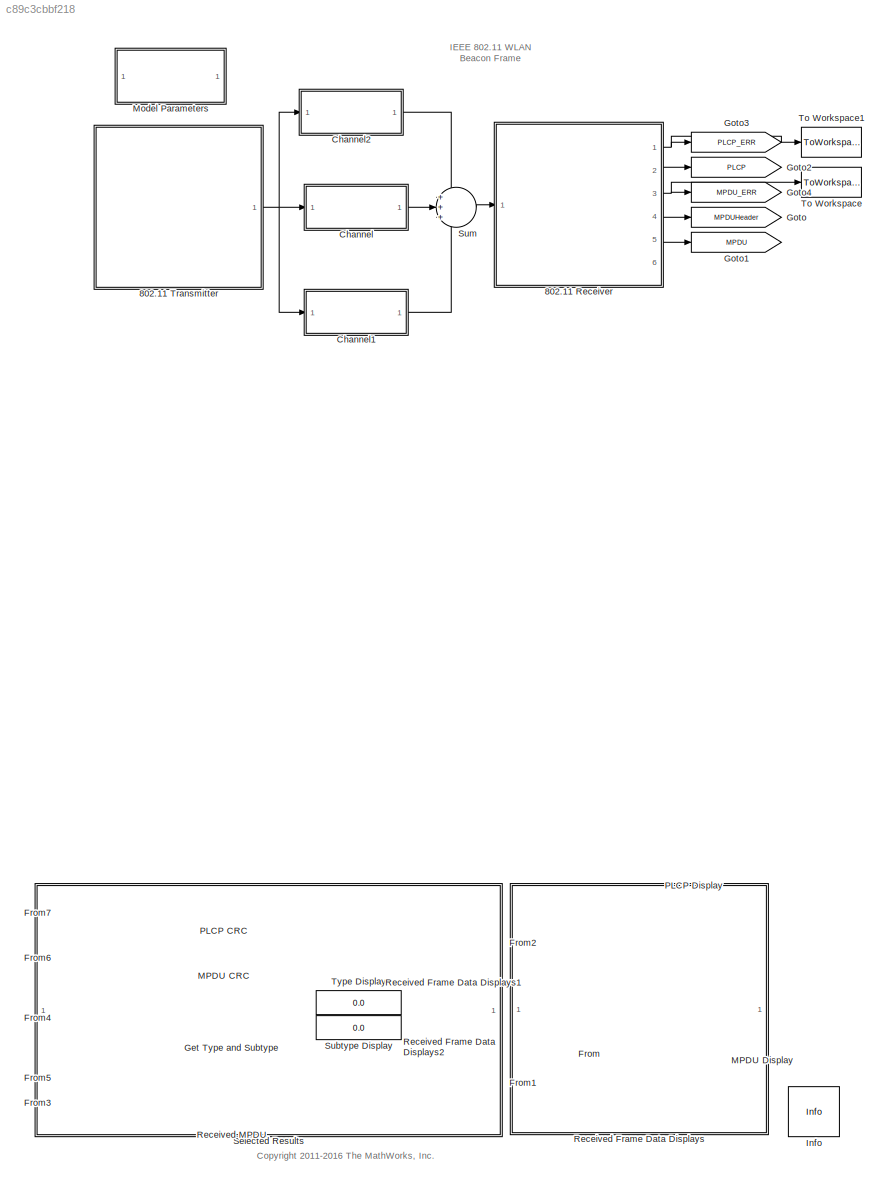
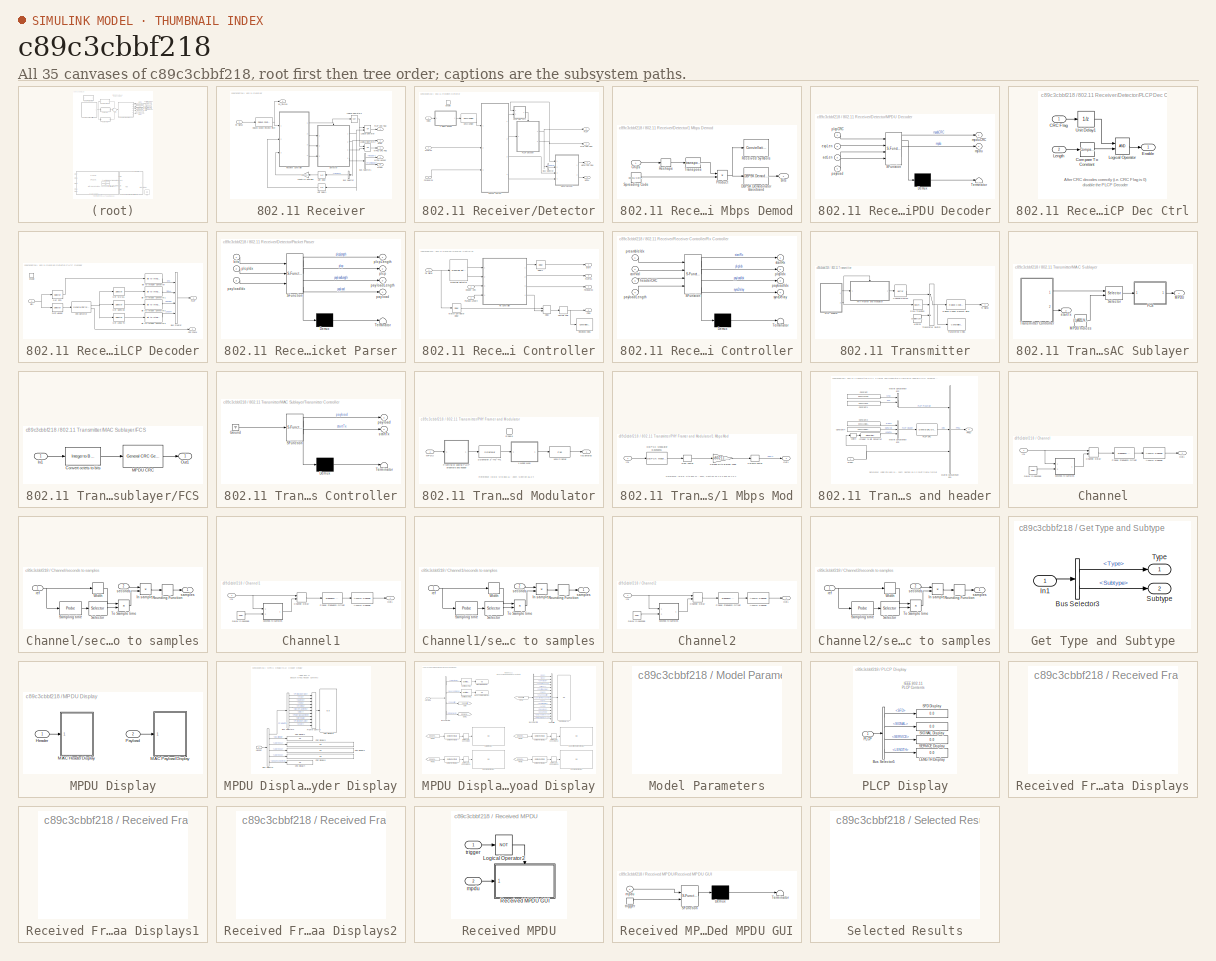
[diagram: thumbnail index - all 35 canvases of the model, root first then tree order]
MODEL slx_c89c3cbbf218
KIND model
CONFIG AbsTol = auto
CONFIG EnableMultiTasking = off
CONFIG FixedStep = auto
CONFIG InitFcn = load('commwlan80211BusTypes')
CONFIG MaxStep = auto
CONFIG MinStep = auto
CONFIG PostLoadFcn = commwlan80211BeaconModelParams('init')
CONFIG PreLoadFcn = load('commwlan80211BusTypes')\n
CONFIG RelTol = 1e-3
CONFIG SampleTimeConstraint = Unconstrained
CONFIG Solver = FixedStepDiscrete
CONFIG SolverName = FixedStepDiscrete
CONFIG StartTime = 0.0
CONFIG StopTime = 1
WORKSPACE source: external: MAT-File  (data not in archive)
BLOCK [SubSystem] 802.11 Receiver
  Ports = [1, 6]
  RequestExecContextInheritance = off
  Variant = off
BLOCK [BusSelector] 802.11 Receiver/Bus Selector
  OutputAsBus = off
  OutputSignals = LENGTH
  Ports = [1, 1]
BLOCK [BusSelector] 802.11 Receiver/Bus Selector1
  OutputAsBus = off
  OutputSignals = Header,FrameBody
  Ports = [1, 2]
BLOCK [SubSystem] 802.11 Receiver/Detector
  Ports = [3, 4, 1]
  RequestExecContextInheritance = off
  Variant = off
BLOCK [SubSystem] 802.11 Receiver/Detector/1 Mbps Demod
  Ports = [1, 1]
  RequestExecContextInheritance = off
  Variant = off
BLOCK [Outport] 802.11 Receiver/Detector/1 Mbps Demod/Bits
  IconDisplay = Port number
BLOCK [Inport] 802.11 Receiver/Detector/1 Mbps Demod/Chips
  IconDisplay = Port number
BLOCK [Reference] 802.11 Receiver/Detector/1 Mbps Demod/DBPSK Demodulator Baseband  REF=commdigbbndpm3/DBPSK
Demodulator
Baseband
  Ports = [1, 1]
  SourceBlock = commdigbbndpm3/DBPSK\nDemodulator\nBaseband
  SourceProductBaseCode = CM
  SourceProductName = Communications System Toolbox
  SourceType = DBPSK Demodulator Baseband
BLOCK [Product] 802.11 Receiver/Detector/1 Mbps Demod/Product
  InputSameDT = off
  Multiplication = Matrix(*)
  OutDataTypeStr = Inherit: Inherit via internal rule
  Ports = [2, 1]
  SaturateOnIntegerOverflow = off
BLOCK [ConstellationDiagram] 802.11 Receiver/Detector/1 Mbps Demod/Received Symbols
  Ports = [1]
  ScopeSpecificationString = comm.scopes.ConstellationDiagramBlockCfg('CurrentConfiguration', extmgr.ConfigurationSet(extmgr.Configuration('Core','General UI',true),extmgr.Configuration('Core','Source UI',true),extmgr.Configuration('Sources','WiredSimulink',true),extmgr.Configuration('Sources','SimulinkEvent',false),extmgr.Configuration('Sources','Simulink',false),extmgr.Configuration('Sources','SPTool',false),extmgr.Configur...<+2090ch>
  Tag = ScatterPlot
BLOCK [Reshape] 802.11 Receiver/Detector/1 Mbps Demod/Reshape
  OutputDimensionality = Customize
  OutputDimensions = [length(p80211.SpreadingCode), p80211.SymbolsPerChannelFrame]
  Ports = [1, 1]
BLOCK [Constant] 802.11 Receiver/Detector/1 Mbps Demod/Spreading Code
  Value = p80211.SpreadingCode
  VectorParams1D = off
BLOCK [Math] 802.11 Receiver/Detector/1 Mbps Demod/Transpose
  Operator = transpose
  Ports = [1, 1]
BLOCK [BusSelector] 802.11 Receiver/Detector/Bus Selector
  OutputAsBus = off
  OutputSignals = LENGTH
  Ports = [1, 1]
BLOCK [Inport] 802.11 Receiver/Detector/Chips
  IconDisplay = Port number
BLOCK [Reference] 802.11 Receiver/Detector/Descrambler  REF=commsequence2/Descrambler
  Ports = [1, 1]
  SourceBlock = commsequence2/Descrambler
  SourceProductBaseCode = CM
  SourceProductName = Communications System Toolbox
  SourceType = Descrambler
BLOCK [EnablePort] 802.11 Receiver/Detector/Enable
  Ports = []
  PropagateVarSize = During execution
  StatesWhenEnabling = reset
BLOCK [Outport] 802.11 Receiver/Detector/MPDU
  IconDisplay = Port number
  Port = 4
BLOCK [Outport] 802.11 Receiver/Detector/MPDU CRC Flag
  IconDisplay = Port number
  InitialOutput = 1
  Port = 3
BLOCK [SubSystem] 802.11 Receiver/Detector/MPDU Decoder
  ErrorFcn = Stateflow.Translate.translate
  PermitHierarchicalResolution = ExplicitOnly
  Ports = [4, 2]
  RequestExecContextInheritance = off
  SFBlockType = MATLAB Function
  TreatAsAtomicUnit = on
  Variant = off
BLOCK [Demux] 802.11 Receiver/Detector/MPDU Decoder/ Demux 
  Outputs = 1
  Ports = [1, 1]
BLOCK [S-Function] 802.11 Receiver/Detector/MPDU Decoder/ SFunction 
  EnableBusSupport = on
  FunctionName = sf_sfun
  PortCounts = [4 3]
  Ports = [4, 3]
  SFcnIsStateOwnerBlock = off
  SFunctionDeploymentMode = off
  Tag = Stateflow S-Function project 2
BLOCK [Terminator] 802.11 Receiver/Detector/MPDU Decoder/ Terminator 
BLOCK [Inport] 802.11 Receiver/Detector/MPDU Decoder/actLen
  IconDisplay = Port number
  Port = 3
BLOCK [Inport] 802.11 Receiver/Detector/MPDU Decoder/expLen
  IconDisplay = Port number
  Port = 2
BLOCK [Outport] 802.11 Receiver/Detector/MPDU Decoder/mpdu
  IconDisplay = Port number
  Port = 2
BLOCK [Outport] 802.11 Receiver/Detector/MPDU Decoder/mpduCRC
  IconDisplay = Port number
BLOCK [Inport] 802.11 Receiver/Detector/MPDU Decoder/payload
  IconDisplay = Port number
  Port = 4
BLOCK [Inport] 802.11 Receiver/Detector/MPDU Decoder/plcpCRC
  IconDisplay = Port number
BLOCK [Outport] 802.11 Receiver/Detector/PLCP
  IconDisplay = Port number
  Port = 2
BLOCK [Outport] 802.11 Receiver/Detector/PLCP CRC Flag
  IconDisplay = Port number
  InitialOutput = 1
BLOCK [SubSystem] 802.11 Receiver/Detector/PLCP Dec Ctrl
  Ports = [2, 1]
  RequestExecContextInheritance = off
  Variant = off
BLOCK [Inport] 802.11 Receiver/Detector/PLCP Dec Ctrl/CRC Flag
  IconDisplay = Port number
BLOCK [Reference] 802.11 Receiver/Detector/PLCP Dec Ctrl/Compare To Constant  REF=simulink/Logic and Bit
Operations/Compare
To Constant
  Ports = [1, 1]
  SourceBlock = simulink/Logic and Bit\nOperations/Compare\nTo Constant
  SourceProductBaseCode = SL
  SourceProductName = Simulink
  SourceType = Compare To Constant
BLOCK [Outport] 802.11 Receiver/Detector/PLCP Dec Ctrl/Enable
  IconDisplay = Port number
BLOCK [Inport] 802.11 Receiver/Detector/PLCP Dec Ctrl/Length
  IconDisplay = Port number
  Port = 2
BLOCK [Logic] 802.11 Receiver/Detector/PLCP Dec Ctrl/Logical Operator
  AllPortsSameDT = off
  OutDataTypeStr = boolean
  Ports = [2, 1]
BLOCK [UnitDelay] 802.11 Receiver/Detector/PLCP Dec Ctrl/Unit Delay1
  InitialCondition = 1
  InputProcessing = Elements as channels (sample based)
  SampleTime = -1
BLOCK [SubSystem] 802.11 Receiver/Detector/PLCP Decoder
  Ports = [1, 2, 1]
  RequestExecContextInheritance = off
  Variant = off
BLOCK [Reference] 802.11 Receiver/Detector/PLCP Decoder/Bit to Integer Converter  REF=commutil2/Bit to Integer
Converter
  Ports = [1, 1]
  SourceBlock = commutil2/Bit to Integer\nConverter
  SourceProductBaseCode = CM
  SourceProductName = Communications System Toolbox
  SourceType = Bit to Integer Converter
BLOCK [Reference] 802.11 Receiver/Detector/PLCP Decoder/Bit to Integer Converter1  REF=commutil2/Bit to Integer
Converter
  Ports = [1, 1]
  SourceBlock = commutil2/Bit to Integer\nConverter
  SourceProductBaseCode = CM
  SourceProductName = Communications System Toolbox
  SourceType = Bit to Integer Converter
BLOCK [Reference] 802.11 Receiver/Detector/PLCP Decoder/Bit to Integer Converter2  REF=commutil2/Bit to Integer
Converter
  Ports = [1, 1]
  SourceBlock = commutil2/Bit to Integer\nConverter
  SourceProductBaseCode = CM
  SourceProductName = Communications System Toolbox
  SourceType = Bit to Integer Converter
BLOCK [Reference] 802.11 Receiver/Detector/PLCP Decoder/Bit to Integer Converter3  REF=commutil2/Bit to Integer
Converter
  Ports = [1, 1]
  SourceBlock = commutil2/Bit to Integer\nConverter
  SourceProductBaseCode = CM
  SourceProductName = Communications System Toolbox
  SourceType = Bit to Integer Converter
BLOCK [Inport] 802.11 Receiver/Detector/PLCP Decoder/Bits
  IconDisplay = Port number
BLOCK [BusCreator] 802.11 Receiver/Detector/PLCP Decoder/Bus Creator
  DisplayOption = bar
  InheritFromInputs = on
  Inputs = 4
  Ports = [4, 1]
BLOCK [Outport] 802.11 Receiver/Detector/PLCP Decoder/CRC Check
  IconDisplay = Port number
  Port = 2
BLOCK [Reference] 802.11 Receiver/Detector/PLCP Decoder/CRC Detector  REF=commcrc2/General CRC
Syndrome
Detector
  Ports = [1, 2]
  SourceBlock = commcrc2/General CRC\nSyndrome\nDetector
  SourceProductBaseCode = CM
  SourceProductName = Communications System Toolbox
  SourceType = General CRC Syndrome Detector
BLOCK [EnablePort] 802.11 Receiver/Detector/PLCP Decoder/Enable
  Ports = []
  PropagateVarSize = During execution
  StatesWhenEnabling = reset
BLOCK [Selector] 802.11 Receiver/Detector/PLCP Decoder/Get LENGTH
  IndexOptions = Index vector (dialog)
  Indices = 17:32
  InputPortWidth = 32
  OutputSizes = 1
  Ports = [1, 1]
BLOCK [Selector] 802.11 Receiver/Detector/PLCP Decoder/Get SERVICE
  IndexOptions = Index vector (dialog)
  Indices = 9:16
  InputPortWidth = 32
  OutputSizes = 1
  Ports = [1, 1]
BLOCK [Selector] 802.11 Receiver/Detector/PLCP Decoder/Get SFD
  IndexOptions = Index vector (dialog)
  Indices = (1:16)+length(p80211.ScramblerPolynomial)
  InputPortWidth = p80211.PLCPHeaderLength + length(p80211.SFD) + length(p80211.ScramblerPolynomial)
  OutputSizes = 1
  Ports = [1, 1]
BLOCK [Selector] 802.11 Receiver/Detector/PLCP Decoder/Get SIGNAL
  IndexOptions = Index vector (dialog)
  Indices = 1:8
  InputPortWidth = 32
  OutputSizes = 1
  Ports = [1, 1]
BLOCK [Outport] 802.11 Receiver/Detector/PLCP Decoder/PLCP
  IconDisplay = Port number
BLOCK [Selector] 802.11 Receiver/Detector/PLCP Decoder/PLCP Header
  IndexOptions = Index vector (dialog)
  Indices = (17:64)+length(p80211.ScramblerPolynomial)
  InputPortWidth = p80211.PLCPHeaderLength + length(p80211.SFD) + length(p80211.ScramblerPolynomial)
  OutputSizes = 1
  Ports = [1, 1]
BLOCK [Inport] 802.11 Receiver/Detector/PLCPIdx
  IconDisplay = Port number
  Port = 2
BLOCK [SubSystem] 802.11 Receiver/Detector/Packet Parser
  ErrorFcn = Stateflow.Translate.translate
  PermitHierarchicalResolution = ExplicitOnly
  Ports = [3, 4]
  RequestExecContextInheritance = off
  SFBlockType = MATLAB Function
  TreatAsAtomicUnit = on
  Variant = off
BLOCK [Demux] 802.11 Receiver/Detector/Packet Parser/ Demux 
  Outputs = 1
  Ports = [1, 1]
BLOCK [S-Function] 802.11 Receiver/Detector/Packet Parser/ SFunction 
  EnableBusSupport = on
  FunctionName = sf_sfun
  Parameters = p80211
  PortCounts = [3 5]
  Ports = [3, 5]
  SFcnIsStateOwnerBlock = off
  SFunctionDeploymentMode = off
  Tag = Stateflow S-Function project 3
BLOCK [Terminator] 802.11 Receiver/Detector/Packet Parser/ Terminator 
BLOCK [Inport] 802.11 Receiver/Detector/Packet Parser/bits
  IconDisplay = Port number
BLOCK [Outport] 802.11 Receiver/Detector/Packet Parser/payload
  IconDisplay = Port number
  Port = 4
BLOCK [Inport] 802.11 Receiver/Detector/Packet Parser/payloadIdx
  IconDisplay = Port number
  Port = 3
BLOCK [Outport] 802.11 Receiver/Detector/Packet Parser/payloadLength
  IconDisplay = Port number
  Port = 3
BLOCK [Outport] 802.11 Receiver/Detector/Packet Parser/plcp
  IconDisplay = Port number
  Port = 2
BLOCK [Inport] 802.11 Receiver/Detector/Packet Parser/plcpIdx
  IconDisplay = Port number
  Port = 2
BLOCK [Outport] 802.11 Receiver/Detector/Packet Parser/plcpLength
  IconDisplay = Port number
BLOCK [Inport] 802.11 Receiver/Detector/PayloadIdx
  IconDisplay = Port number
  Port = 3
BLOCK [Gain] 802.11 Receiver/Length in Samples
  Gain = p80211.SamplesPerChip*p80211.SpreadingRate
  OutDataTypeStr = uint32
BLOCK [Logic] 802.11 Receiver/Logical Operator
  AllPortsSameDT = off
  Operator = OR
  OutDataTypeStr = boolean
  Ports = [2, 1]
BLOCK [Logic] 802.11 Receiver/Logical Operator1
  AllPortsSameDT = off
  Operator = OR
  OutDataTypeStr = boolean
  Ports = [2, 1]
BLOCK [Logic] 802.11 Receiver/Logical Operator2
  AllPortsSameDT = off
  Operator = NOT
  OutDataTypeStr = boolean
  Ports = [1, 1]
BLOCK [Outport] 802.11 Receiver/MPDU
  IconDisplay = Port number
  Port = 5
BLOCK [Outport] 802.11 Receiver/MPDU CRC Flag
  IconDisplay = Port number
  Port = 3
BLOCK [Outport] 802.11 Receiver/MPDU Header
  IconDisplay = Port number
  Port = 4
BLOCK [Outport] 802.11 Receiver/PLCP
  IconDisplay = Port number
  Port = 2
BLOCK [Outport] 802.11 Receiver/PLCP CRC Flag
  IconDisplay = Port number
BLOCK [Outport] 802.11 Receiver/RX_filtered
  IconDisplay = Port number
  Port = 6
BLOCK [Reference] 802.11 Receiver/Raised Cosine Receive Filter  REF=commfilt2/Raised Cosine
Receive Filter
  Ports = [1, 1]
  SourceBlock = commfilt2/Raised Cosine\nReceive Filter
  SourceProductBaseCode = CM
  SourceProductName = Communications System Toolbox
  SourceType = Raised Cosine Receive Filter
  UserDataPersistent = on
BLOCK [SubSystem] 802.11 Receiver/Receiver Controller
  Ports = [3, 4]
  RequestExecContextInheritance = off
  Variant = off
BLOCK [Outport] 802.11 Receiver/Receiver Controller/Chips
  IconDisplay = Port number
  Port = 2
BLOCK [Delay] 802.11 Receiver/Receiver Controller/Delay
  DelayLengthSource = Input port
  DelayLengthUpperLimit = 11264
  InputPortMap = u0,p1
  InputProcessing = Columns as channels (frame based)
  Ports = [2, 1]
BLOCK [Delay] 802.11 Receiver/Receiver Controller/Delay1
  DelayLength = 1
  InitialCondition = 0
  InputPortMap = u0
  Ports = [1, 1]
  UseCircularBuffer = on
  UserDataPersistent = on
BLOCK [Inport] 802.11 Receiver/Receiver Controller/Header CRC
  IconDisplay = Port number
  Port = 2
BLOCK [Delay] 802.11 Receiver/Receiver Controller/Match Correlator Delay
  DelayLength = 1
  InitialCondition = 0
  InputPortMap = u0
  Ports = [1, 1]
  UseCircularBuffer = on
  UserDataPersistent = on
BLOCK [Outport] 802.11 Receiver/Receiver Controller/PLCPIdx
  IconDisplay = Port number
  Port = 3
BLOCK [Inport] 802.11 Receiver/Receiver Controller/Payload Length
  IconDisplay = Port number
  Port = 3
BLOCK [Outport] 802.11 Receiver/Receiver Controller/PayloadIdx
  IconDisplay = Port number
  Port = 4
BLOCK [Reference] 802.11 Receiver/Receiver Controller/Preamble Detector  REF=commsync2/Preamble Detector
  Ports = [1, 2]
  SourceBlock = commsync2/Preamble Detector
  SourceProductBaseCode = CM
  SourceProductName = Communications System Toolbox
  SourceType = Preamble Detector
BLOCK [ConstellationDiagram] 802.11 Receiver/Receiver Controller/Received Chips
  Ports = [1]
  ScopeSpecificationString = comm.scopes.ConstellationDiagramBlockCfg('CurrentConfiguration', extmgr.ConfigurationSet(extmgr.Configuration('Core','General UI',true),extmgr.Configuration('Core','Source UI',true),extmgr.Configuration('Sources','WiredSimulink',true),extmgr.Configuration('Visuals','Constellation',true,'MinYLim','-4','MaxYLim','4','MinXLim','-4','MaxXLim','4','SymbolsToDisplayFromInput',false,'SymbolsToDisplay','p...<+956ch>
  Tag = ScatterPlot
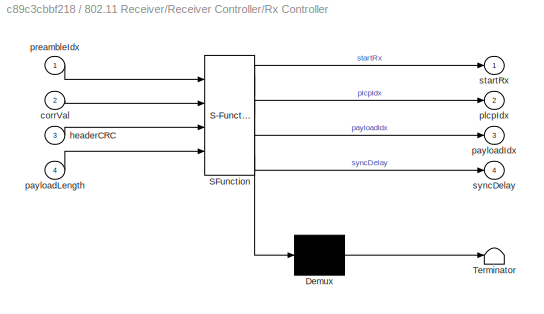
BLOCK [SubSystem] 802.11 Receiver/Receiver Controller/Rx Controller
  ErrorFcn = Stateflow.Translate.translate
  PermitHierarchicalResolution = ExplicitOnly
  Ports = [4, 4]
  RequestExecContextInheritance = off
  SFBlockType = MATLAB Function
  TreatAsAtomicUnit = on
  Variant = off
BLOCK [Demux] 802.11 Receiver/Receiver Controller/Rx Controller/ Demux 
  Outputs = 1
  Ports = [1, 1]
BLOCK [S-Function] 802.11 Receiver/Receiver Controller/Rx Controller/ SFunction 
  EnableBusSupport = on
  FunctionName = sf_sfun
  Parameters = p80211
  PortCounts = [4 5]
  Ports = [4, 5]
  SFcnIsStateOwnerBlock = off
  SFunctionDeploymentMode = off
  Tag = Stateflow S-Function project 4
BLOCK [Terminator] 802.11 Receiver/Receiver Controller/Rx Controller/ Terminator 
BLOCK [Inport] 802.11 Receiver/Receiver Controller/Rx Controller/corrVal
  IconDisplay = Port number
  Port = 2
BLOCK [Inport] 802.11 Receiver/Receiver Controller/Rx Controller/headerCRC
  IconDisplay = Port number
  Port = 3
BLOCK [Outport] 802.11 Receiver/Receiver Controller/Rx Controller/payloadIdx
  IconDisplay = Port number
  Port = 3
BLOCK [Inport] 802.11 Receiver/Receiver Controller/Rx Controller/payloadLength
  IconDisplay = Port number
  Port = 4
BLOCK [Outport] 802.11 Receiver/Receiver Controller/Rx Controller/plcpIdx
  IconDisplay = Port number
  Port = 2
BLOCK [Inport] 802.11 Receiver/Receiver Controller/Rx Controller/preambleIdx
  IconDisplay = Port number
BLOCK [Outport] 802.11 Receiver/Receiver Controller/Rx Controller/startRx
  IconDisplay = Port number
BLOCK [Outport] 802.11 Receiver/Receiver Controller/Rx Controller/syncDelay
  IconDisplay = Port number
  Port = 4
BLOCK [Inport] 802.11 Receiver/Receiver Controller/Rx Signal
  IconDisplay = Port number
BLOCK [DownSample] 802.11 Receiver/Receiver Controller/Sample Chip
  N = p80211.SamplesPerChip
  UserDataPersistent = on
BLOCK [Outport] 802.11 Receiver/Receiver Controller/Start
  IconDisplay = Port number
BLOCK [Inport] 802.11 Receiver/Rx Signal
  IconDisplay = Port number
BLOCK [UnitDelay] 802.11 Receiver/Unit Delay
  InitialCondition = p80211.SymbolsPerChannelFrame
  InputProcessing = Elements as channels (sample based)
  SampleTime = -1
BLOCK [UnitDelay] 802.11 Receiver/Unit Delay1
  InitialCondition = 1
  InputProcessing = Elements as channels (sample based)
  SampleTime = -1
BLOCK [SubSystem] 802.11 Transmitter
  Ports = [0, 1]
  RequestExecContextInheritance = off
  Variant = off
BLOCK [Constant] 802.11 Transmitter/All Zeros
  Value = complex(zeros(p80211.SymbolsPerChannelFrame*p80211.SpreadingRate,1))
  VectorParams1D = off
BLOCK [Buffer] 802.11 Transmitter/Channel Frames
  N = p80211.SymbolsPerChannelFrame*p80211.SpreadingRate
  OutputFrames = off
BLOCK [SubSystem] 802.11 Transmitter/MAC Sublayer
  Ports = [0, 2]
  RequestExecContextInheritance = off
  Variant = off
BLOCK [SubSystem] 802.11 Transmitter/MAC Sublayer/FCS
  Ports = [1, 1]
  RequestExecContextInheritance = off
  Variant = off
BLOCK [Reference] 802.11 Transmitter/MAC Sublayer/FCS/Convert octets to bits  REF=commutil2/Integer to Bit
Converter
  Ports = [1, 1]
  SourceBlock = commutil2/Integer to Bit\nConverter
  SourceProductBaseCode = CM
  SourceProductName = Communications System Toolbox
  SourceType = Integer to Bit Converter
BLOCK [Inport] 802.11 Transmitter/MAC Sublayer/FCS/In1
  IconDisplay = Port number
BLOCK [Reference] 802.11 Transmitter/MAC Sublayer/FCS/MPDU CRC  REF=commcrc2/General CRC
Generator
  Ports = [1, 1]
  SourceBlock = commcrc2/General CRC\nGenerator
  SourceProductBaseCode = CM
  SourceProductName = Communications System Toolbox
  SourceType = General CRC Generator
BLOCK [Outport] 802.11 Transmitter/MAC Sublayer/FCS/Out1
  IconDisplay = Port number
BLOCK [Outport] 802.11 Transmitter/MAC Sublayer/MPDU
  IconDisplay = Port number
BLOCK [Constant] 802.11 Transmitter/MAC Sublayer/MPDU Indices
  Value = (1:p80211.NumMPDUOctets)'
  VectorParams1D = off
BLOCK [Selector] 802.11 Transmitter/MAC Sublayer/Selector
  IndexOptions = Index vector (port)
  Indices = [1:p80211.NumMPDUOctets]
  OutputSizes = 1
  Ports = [2, 1]
BLOCK [SubSystem] 802.11 Transmitter/MAC Sublayer/Transmitter Controller
  ErrorFcn = Stateflow.Translate.translate
  PermitHierarchicalResolution = ExplicitOnly
  Ports = [0, 2]
  RequestExecContextInheritance = off
  SFBlockType = MATLAB Function
  TreatAsAtomicUnit = on
  Variant = off
BLOCK [Demux] 802.11 Transmitter/MAC Sublayer/Transmitter Controller/ Demux 
  Outputs = 1
  Ports = [1, 1]
BLOCK [Ground] 802.11 Transmitter/MAC Sublayer/Transmitter Controller/ Ground 
BLOCK [S-Function] 802.11 Transmitter/MAC Sublayer/Transmitter Controller/ SFunction 
  EnableBusSupport = on
  FunctionName = sf_sfun
  Parameters = p80211
  PortCounts = [1 3]
  Ports = [1, 3]
  SFcnIsStateOwnerBlock = off
  SFunctionDeploymentMode = off
  Tag = Stateflow S-Function project 5
BLOCK [Terminator] 802.11 Transmitter/MAC Sublayer/Transmitter Controller/ Terminator 
BLOCK [Outport] 802.11 Transmitter/MAC Sublayer/Transmitter Controller/payload
  IconDisplay = Port number
BLOCK [Outport] 802.11 Transmitter/MAC Sublayer/Transmitter Controller/startTx
  IconDisplay = Port number
  Port = 2
BLOCK [Outport] 802.11 Transmitter/MAC Sublayer/startTx
  IconDisplay = Port number
  Port = 2
BLOCK [SubSystem] 802.11 Transmitter/PHY Framer and Modulator
  Ports = [1, 1, 1]
  RequestExecContextInheritance = off
  Variant = off
BLOCK [SubSystem] 802.11 Transmitter/PHY Framer and Modulator/1 Mbps Mod
  Ports = [1, 1]
  RequestExecContextInheritance = off
  Variant = off
BLOCK [Reshape] 802.11 Transmitter/PHY Framer and Modulator/1 Mbps Mod/Column vector
  OutputDimensionality = Column vector (2-D)
  Ports = [1, 1]
BLOCK [Reference] 802.11 Transmitter/PHY Framer and Modulator/1 Mbps Mod/DBPSK Modulator Baseband1  REF=commdigbbndpm3/DBPSK
Modulator
Baseband
  Ports = [1, 1]
  SourceBlock = commdigbbndpm3/DBPSK\nModulator\nBaseband
  SourceProductBaseCode = CM
  SourceProductName = Communications System Toolbox
  SourceType = DBPSK Modulator Baseband
BLOCK [Inport] 802.11 Transmitter/PHY Framer and Modulator/1 Mbps Mod/In1
  IconDisplay = Port number
BLOCK [Outport] 802.11 Transmitter/PHY Framer and Modulator/1 Mbps Mod/Out1
  IconDisplay = Port number
BLOCK [Reshape] 802.11 Transmitter/PHY Framer and Modulator/1 Mbps Mod/Row vector
  OutputDimensionality = Row vector (2-D)
  Ports = [1, 1]
BLOCK [Gain] 802.11 Transmitter/PHY Framer and Modulator/1 Mbps Mod/Spread with Barker code
  Gain = p80211.SpreadingCode
  Multiplication = Matrix(K*u)
BLOCK [Reference] 802.11 Transmitter/PHY Framer and Modulator/1024 Framer  REF=dspsigops/Pad
  Ports = [1, 1]
  SourceBlock = dspsigops/Pad
  SourceProductBaseCode = DS
  SourceProductName = DSP System Toolbox
  SourceType = Pad
BLOCK [EnablePort] 802.11 Transmitter/PHY Framer and Modulator/Enable
  Ports = []
  StatesWhenEnabling = reset
BLOCK [SubSystem] 802.11 Transmitter/PHY Framer and Modulator/Framing by adding PLCP preamble and header
  Ports = [1, 1]
  RequestExecContextInheritance = off
  Variant = off
BLOCK [Constant] 802.11 Transmitter/PHY Framer and Modulator/Framing by adding PLCP preamble and header/Constant
  Value = p80211.SYNC
  VectorParams1D = off
BLOCK [Constant] 802.11 Transmitter/PHY Framer and Modulator/Framing by adding PLCP preamble and header/Constant1
  Value = p80211.SFD
  VectorParams1D = off
BLOCK [Constant] 802.11 Transmitter/PHY Framer and Modulator/Framing by adding PLCP preamble and header/Constant2
  Value = p80211.SIGNAL
  VectorParams1D = off
BLOCK [Constant] 802.11 Transmitter/PHY Framer and Modulator/Framing by adding PLCP preamble and header/Constant4
  Value = p80211.SERVICE
  VectorParams1D = off
BLOCK [Reference] 802.11 Transmitter/PHY Framer and Modulator/Framing by adding PLCP preamble and header/Integer to Bit Converter  REF=commutil2/Integer to Bit
Converter
  Ports = [1, 1]
  SourceBlock = commutil2/Integer to Bit\nConverter
  SourceProductBaseCode = CM
  SourceProductName = Communications System Toolbox
  SourceType = Integer to Bit Converter
BLOCK [Inport] 802.11 Transmitter/PHY Framer and Modulator/Framing by adding PLCP preamble and header/MPDU
  IconDisplay = Port number
BLOCK [Concatenate] 802.11 Transmitter/PHY Framer and Modulator/Framing by adding PLCP preamble and header/Matrix Concatenation1
  Mode = Multidimensional array
  NumInputs = 3
  Ports = [3, 1]
BLOCK [Concatenate] 802.11 Transmitter/PHY Framer and Modulator/Framing by adding PLCP preamble and header/Matrix Concatenation2
  Mode = Multidimensional array
  Ports = [2, 1]
BLOCK [Concatenate] 802.11 Transmitter/PHY Framer and Modulator/Framing by adding PLCP preamble and header/Matrix Concatenation3
  Mode = Multidimensional array
  NumInputs = 3
  Ports = [3, 1]
BLOCK [Reference] 802.11 Transmitter/PHY Framer and Modulator/Framing by adding PLCP preamble and header/PLCP CRC  REF=commcrc2/General CRC
Generator
  Ports = [1, 1]
  SourceBlock = commcrc2/General CRC\nGenerator
  SourceProductBaseCode = CM
  SourceProductName = Communications System Toolbox
  SourceType = General CRC Generator
BLOCK [Outport] 802.11 Transmitter/PHY Framer and Modulator/Framing by adding PLCP preamble and header/PPDU
  IconDisplay = Port number
BLOCK [Width] 802.11 Transmitter/PHY Framer and Modulator/Framing by adding PLCP preamble and header/Width
BLOCK [Inport] 802.11 Transmitter/PHY Framer and Modulator/MPDU
  IconDisplay = Port number
BLOCK [Reference] 802.11 Transmitter/PHY Framer and Modulator/Scrambler z^-7+z^-4+1  REF=commsequence2/Scrambler
  Ports = [1, 1]
  SourceBlock = commsequence2/Scrambler
  SourceProductBaseCode = CM
  SourceProductName = Communications System Toolbox
  SourceType = Scrambler
BLOCK [Outport] 802.11 Transmitter/PHY Framer and Modulator/txSamples
  IconDisplay = Port number
BLOCK [Reference] 802.11 Transmitter/Raised Cosine Transmit Filter  REF=commfilt2/Raised Cosine
Transmit Filter
  Ports = [1, 1]
  SourceBlock = commfilt2/Raised Cosine\nTransmit Filter
  SourceProductBaseCode = CM
  SourceProductName = Communications System Toolbox
  SourceType = Raised Cosine Transmit Filter
  UserDataPersistent = on
BLOCK [RateTransition] 802.11 Transmitter/Rate Transition
BLOCK [ConstellationDiagram] 802.11 Transmitter/Transmitted Chips
  Ports = [1]
  ScopeSpecificationString = comm.scopes.ConstellationDiagramBlockCfg('CurrentConfiguration', extmgr.ConfigurationSet(extmgr.Configuration('Core','General UI',true),extmgr.Configuration('Core','Source UI',true),extmgr.Configuration('Sources','WiredSimulink',true),extmgr.Configuration('Sources','Workspace',false),extmgr.Configuration('Sources','Streaming',false),extmgr.Configuration('Sources','File',false),extmgr.Configuration...<+2036ch>
  Tag = ScatterPlot
BLOCK [Switch] 802.11 Transmitter/Transmitter Switch
  Criteria = u2 ~= 0
  InputSameDT = off
  SaturateOnIntegerOverflow = off
BLOCK [Outport] 802.11 Transmitter/Tx Signal
  IconDisplay = Port number
BLOCK [SubSystem] Channel
  AttributesFormatString = Es/No = %<EsNo> dB\nFrequency offset = %<freqOffset> Hz\nDelay = %<delay> s
  BlockChoice = Delay only
  Ports = [1, 1]
  RequestExecContextInheritance = off
  Variant = off
BLOCK [Reference] Channel/AWGN Channel  REF=commchan3/AWGN
Channel
  Ports = [1, 1]
  SourceBlock = commchan3/AWGN\nChannel
  SourceProductBaseCode = CM
  SourceProductName = Communications System Toolbox
  SourceType = AWGN Channel
  UserDataPersistent = on
BLOCK [Delay] Channel/Channel Delay
  DelayLength = 10
  DelayLengthSource = Input port
  DelayLengthUpperLimit = 1024e-6*p80211.ChipRate*p80211.SamplesPerChip
  InputPortMap = u0,p1
  InputProcessing = Columns as channels (frame based)
  Ports = [2, 1]
BLOCK [Constant] Channel/Delay in seconds
  Value = delay
BLOCK [Inport] Channel/In1
  IconDisplay = Port number
BLOCK [Outport] Channel/Out1
  IconDisplay = Port number
BLOCK [Reference] Channel/Phase// Frequency Offset  REF=commrflib2/Phase//
Frequency
Offset
  Ports = [1, 1]
  SourceBlock = commrflib2/Phase//\nFrequency\nOffset
  SourceProductBaseCode = CM
  SourceProductName = Communications System Toolbox
  SourceType = Phase/Frequency Offset
BLOCK [SubSystem] Channel/seconds to samples
  Ports = [2, 1]
  RequestExecContextInheritance = off
  Variant = off
BLOCK [Product] Channel/seconds to samples/In samples
  InputSameDT = off
  Inputs = */
  OutDataTypeStr = Inherit: Inherit via internal rule
  Ports = [2, 1]
  RndMeth = Floor
  SaturateOnIntegerOverflow = off
BLOCK [Rounding] Channel/seconds to samples/Rounding Function
  Operator = round
BLOCK [Probe] Channel/seconds to samples/Sampling time
  Ports = [1, 1]
  ProbeComplexSignal = off
  ProbeWidth = off
BLOCK [Selector] Channel/seconds to samples/Selector
  IndexOptions = Index vector (dialog)
  Indices = 1
  InputPortWidth = 2
  OutputSizes = 1
  Ports = [1, 1]
BLOCK [Product] Channel/seconds to samples/To Sample time
  InputSameDT = off
  Inputs = /*
  OutDataTypeStr = Inherit: Inherit via internal rule
  Ports = [2, 1]
  RndMeth = Floor
  SaturateOnIntegerOverflow = off
BLOCK [Width] Channel/seconds to samples/Width
BLOCK [Inport] Channel/seconds to samples/ref
  IconDisplay = Port number
BLOCK [Outport] Channel/seconds to samples/samples
  IconDisplay = Port number
BLOCK [Inport] Channel/seconds to samples/seconds
  IconDisplay = Port number
  Port = 2
BLOCK [SubSystem] Channel1
  AttributesFormatString = Es/No = %<EsNo> dB\nFrequency offset = %<freqOffset> Hz\nDelay = %<delay> s
  BlockChoice = Delay only
  Ports = [1, 1]
  RequestExecContextInheritance = off
  Variant = off
BLOCK [Reference] Channel1/AWGN Channel  REF=commchan3/AWGN
Channel
  Ports = [1, 1]
  SourceBlock = commchan3/AWGN\nChannel
  SourceProductBaseCode = CM
  SourceProductName = Communications System Toolbox
  SourceType = AWGN Channel
  UserDataPersistent = on
BLOCK [Delay] Channel1/Channel Delay
  DelayLength = 10
  DelayLengthSource = Input port
  DelayLengthUpperLimit = 1024e-6*p80211.ChipRate*p80211.SamplesPerChip
  InputPortMap = u0,p1
  InputProcessing = Columns as channels (frame based)
  Ports = [2, 1]
BLOCK [Constant] Channel1/Delay in seconds
  Value = delay
BLOCK [Inport] Channel1/In1
  IconDisplay = Port number
BLOCK [Outport] Channel1/Out1
  IconDisplay = Port number
BLOCK [Reference] Channel1/Phase// Frequency Offset  REF=commrflib2/Phase//
Frequency
Offset
  Ports = [1, 1]
  SourceBlock = commrflib2/Phase//\nFrequency\nOffset
  SourceProductBaseCode = CM
  SourceProductName = Communications System Toolbox
  SourceType = Phase/Frequency Offset
BLOCK [SubSystem] Channel1/seconds to samples
  Ports = [2, 1]
  RequestExecContextInheritance = off
  Variant = off
BLOCK [Product] Channel1/seconds to samples/In samples
  InputSameDT = off
  Inputs = */
  OutDataTypeStr = Inherit: Inherit via internal rule
  Ports = [2, 1]
  RndMeth = Floor
  SaturateOnIntegerOverflow = off
BLOCK [Rounding] Channel1/seconds to samples/Rounding Function
  Operator = round
BLOCK [Probe] Channel1/seconds to samples/Sampling time
  Ports = [1, 1]
  ProbeComplexSignal = off
  ProbeWidth = off
BLOCK [Selector] Channel1/seconds to samples/Selector
  IndexOptions = Index vector (dialog)
  Indices = 1
  InputPortWidth = 2
  OutputSizes = 1
  Ports = [1, 1]
BLOCK [Product] Channel1/seconds to samples/To Sample time
  InputSameDT = off
  Inputs = /*
  OutDataTypeStr = Inherit: Inherit via internal rule
  Ports = [2, 1]
  RndMeth = Floor
  SaturateOnIntegerOverflow = off
BLOCK [Width] Channel1/seconds to samples/Width
BLOCK [Inport] Channel1/seconds to samples/ref
  IconDisplay = Port number
BLOCK [Outport] Channel1/seconds to samples/samples
  IconDisplay = Port number
BLOCK [Inport] Channel1/seconds to samples/seconds
  IconDisplay = Port number
  Port = 2
BLOCK [SubSystem] Channel2
  AttributesFormatString = Es/No = %<EsNo> dB\nFrequency offset = %<freqOffset> Hz\nDelay = %<delay> s
  BlockChoice = Delay only
  Ports = [1, 1]
  RequestExecContextInheritance = off
  Variant = off
BLOCK [Reference] Channel2/AWGN Channel  REF=commchan3/AWGN
Channel
  Ports = [1, 1]
  SourceBlock = commchan3/AWGN\nChannel
  SourceProductBaseCode = CM
  SourceProductName = Communications System Toolbox
  SourceType = AWGN Channel
  UserDataPersistent = on
BLOCK [Delay] Channel2/Channel Delay
  DelayLength = 10
  DelayLengthSource = Input port
  DelayLengthUpperLimit = 1024e-6*p80211.ChipRate*p80211.SamplesPerChip
  InputPortMap = u0,p1
  InputProcessing = Columns as channels (frame based)
  Ports = [2, 1]
BLOCK [Constant] Channel2/Delay in seconds
  Value = delay
BLOCK [Inport] Channel2/In1
  IconDisplay = Port number
BLOCK [Outport] Channel2/Out1
  IconDisplay = Port number
BLOCK [Reference] Channel2/Phase// Frequency Offset  REF=commrflib2/Phase//
Frequency
Offset
  Ports = [1, 1]
  SourceBlock = commrflib2/Phase//\nFrequency\nOffset
  SourceProductBaseCode = CM
  SourceProductName = Communications System Toolbox
  SourceType = Phase/Frequency Offset
BLOCK [SubSystem] Channel2/seconds to samples
  Ports = [2, 1]
  RequestExecContextInheritance = off
  Variant = off
BLOCK [Product] Channel2/seconds to samples/In samples
  InputSameDT = off
  Inputs = */
  OutDataTypeStr = Inherit: Inherit via internal rule
  Ports = [2, 1]
  RndMeth = Floor
  SaturateOnIntegerOverflow = off
BLOCK [Rounding] Channel2/seconds to samples/Rounding Function
  Operator = round
BLOCK [Probe] Channel2/seconds to samples/Sampling time
  Ports = [1, 1]
  ProbeComplexSignal = off
  ProbeWidth = off
BLOCK [Selector] Channel2/seconds to samples/Selector
  IndexOptions = Index vector (dialog)
  Indices = 1
  InputPortWidth = 2
  OutputSizes = 1
  Ports = [1, 1]
BLOCK [Product] Channel2/seconds to samples/To Sample time
  InputSameDT = off
  Inputs = /*
  OutDataTypeStr = Inherit: Inherit via internal rule
  Ports = [2, 1]
  RndMeth = Floor
  SaturateOnIntegerOverflow = off
BLOCK [Width] Channel2/seconds to samples/Width
BLOCK [Inport] Channel2/seconds to samples/ref
  IconDisplay = Port number
BLOCK [Outport] Channel2/seconds to samples/samples
  IconDisplay = Port number
BLOCK [Inport] Channel2/seconds to samples/seconds
  IconDisplay = Port number
  Port = 2
BLOCK [From] From
  GotoTag = MPDUHeader
BLOCK [From] From1
  GotoTag = MPDU
BLOCK [From] From2
  GotoTag = PLCP
BLOCK [From] From3
  GotoTag = MPDU
BLOCK [From] From4
  GotoTag = MPDUHeader
BLOCK [From] From5
  GotoTag = MPDU_ERR
BLOCK [From] From6
  GotoTag = MPDU_ERR
BLOCK [From] From7
  GotoTag = PLCP_ERR
BLOCK [SubSystem] Get Type and Subtype
  Ports = [1, 2]
  RequestExecContextInheritance = off
  Variant = off
BLOCK [BusSelector] Get Type and Subtype/Bus Selector3
  OutputAsBus = off
  OutputSignals = FrameCtrl.Type,FrameCtrl.Subtype
  Ports = [1, 2]
BLOCK [Inport] Get Type and Subtype/In1
  IconDisplay = Port number
BLOCK [Outport] Get Type and Subtype/Subtype
  IconDisplay = Port number
  Port = 2
BLOCK [Outport] Get Type and Subtype/Type
  IconDisplay = Port number
BLOCK [Goto] Goto
  GotoTag = MPDUHeader
BLOCK [Goto] Goto1
  GotoTag = MPDU
BLOCK [Goto] Goto2
  GotoTag = PLCP
BLOCK [Goto] Goto3
  GotoTag = PLCP_ERR
BLOCK [Goto] Goto4
  GotoTag = MPDU_ERR
BLOCK [Reference] Info  REF=commblksprivate/Info
  Ports = []
  SourceBlock = commblksprivate/Info
  SourceProductBaseCode = CM
  SourceProductName = Communications System Toolbox
  SourceType = Info
BLOCK [Display] MPDU CRC
  Decimation = 1
  Ports = [1]
BLOCK [SubSystem] MPDU Display
  Ports = [2]
  RequestExecContextInheritance = off
  Variant = off
BLOCK [Inport] MPDU Display/Header
  IconDisplay = Port number
BLOCK [SubSystem] MPDU Display/MAC Header Display
  Ports = [1]
  RequestExecContextInheritance = off
  Variant = off
BLOCK [BusSelector] MPDU Display/MAC Header Display/Bus Selector
  OutputAsBus = off
  OutputSignals = FrameCtrl,DurationID,Address1,Address2,Address3,SequenceControl
  Ports = [1, 6]
BLOCK [BusSelector] MPDU Display/MAC Header Display/Bus Selector2
  OutputAsBus = off
  OutputSignals = ProtocolVersion,Type,Subtype,ToDS,FromDS,MoreFragments,Retry,PowerManagement,MoreData,ProtectedFrame,Order
  Ports = [1, 11]
BLOCK [Display] MPDU Display/MAC Header Display/CRC Display1
  Decimation = 1
  Format = hex (Stored Integer)
  Ports = [1]
BLOCK [Display] MPDU Display/MAC Header Display/CRC Display2
  Decimation = 1
  Format = hex (Stored Integer)
  Ports = [1]
BLOCK [Display] MPDU Display/MAC Header Display/CRC Display3
  Decimation = 1
  Format = hex (Stored Integer)
  Ports = [1]
BLOCK [Display] MPDU Display/MAC Header Display/CRC Display4
  Decimation = 1
  Format = hex (Stored Integer)
  Ports = [1]
BLOCK [Display] MPDU Display/MAC Header Display/CRC Display6
  Decimation = 1
  Format = hex (Stored Integer)
  Ports = [1]
BLOCK [Display] MPDU Display/MAC Header Display/CRC Display8
  Decimation = 1
  Ports = [1]
BLOCK [Concatenate] MPDU Display/MAC Header Display/Frame Control
  Mode = Multidimensional array
  NumInputs = 11
  Ports = [11, 1]
BLOCK [Inport] MPDU Display/MAC Header Display/Header
  IconDisplay = Port number
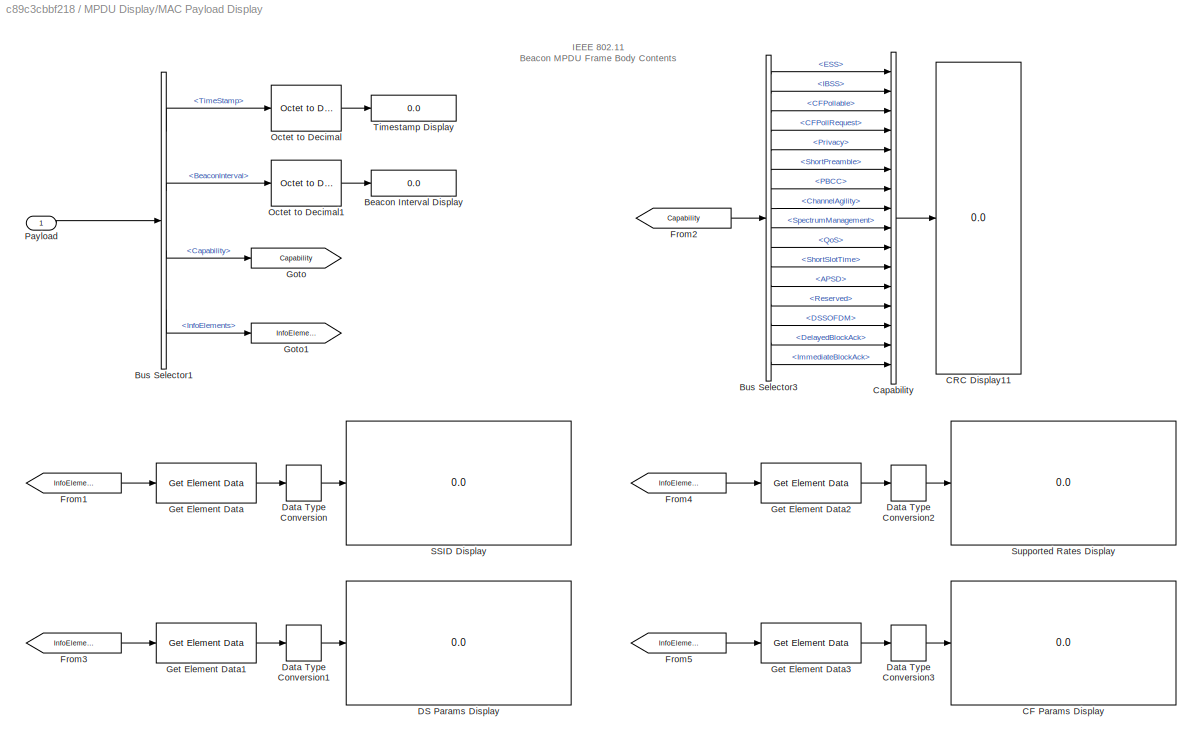
BLOCK [SubSystem] MPDU Display/MAC Payload Display
  Ports = [1]
  RequestExecContextInheritance = off
  Variant = off
BLOCK [Display] MPDU Display/MAC Payload Display/Beacon Interval Display
  Decimation = 1
  Ports = [1]
BLOCK [BusSelector] MPDU Display/MAC Payload Display/Bus Selector1
  OutputAsBus = off
  OutputSignals = TimeStamp,BeaconInterval,Capability,InfoElements
  Ports = [1, 4]
BLOCK [BusSelector] MPDU Display/MAC Payload Display/Bus Selector3
  OutputAsBus = off
  OutputSignals = ESS,IBSS,CFPollable,CFPollRequest,Privacy,ShortPreamble,PBCC,ChannelAgility,SpectrumManagement,QoS,ShortSlotTime,APSD,Reserved,DSSOFDM,DelayedBlockAck,ImmediateBlockAck
  Ports = [1, 16]
BLOCK [Display] MPDU Display/MAC Payload Display/CF Params Display
  Decimation = 1
  Format = hex (Stored Integer)
  Ports = [1]
BLOCK [Display] MPDU Display/MAC Payload Display/CRC Display11
  Decimation = 1
  Ports = [1]
BLOCK [Concatenate] MPDU Display/MAC Payload Display/Capability
  Mode = Multidimensional array
  NumInputs = 16
  Ports = [16, 1]
BLOCK [Display] MPDU Display/MAC Payload Display/DS Params Display
  Decimation = 1
  Format = hex (Stored Integer)
  Ports = [1]
BLOCK [DataTypeConversion] MPDU Display/MAC Payload Display/Data Type Conversion
  OutDataTypeStr = uint8
  RndMeth = Floor
  SaturateOnIntegerOverflow = off
BLOCK [DataTypeConversion] MPDU Display/MAC Payload Display/Data Type Conversion1
  OutDataTypeStr = uint8
  RndMeth = Floor
  SaturateOnIntegerOverflow = off
BLOCK [DataTypeConversion] MPDU Display/MAC Payload Display/Data Type Conversion2
  OutDataTypeStr = uint8
  RndMeth = Floor
  SaturateOnIntegerOverflow = off
BLOCK [DataTypeConversion] MPDU Display/MAC Payload Display/Data Type Conversion3
  OutDataTypeStr = uint8
  RndMeth = Floor
  SaturateOnIntegerOverflow = off
BLOCK [From] MPDU Display/MAC Payload Display/From1
  GotoTag = InfoElements
BLOCK [From] MPDU Display/MAC Payload Display/From2
  GotoTag = Capability
BLOCK [From] MPDU Display/MAC Payload Display/From3
  GotoTag = InfoElements
BLOCK [From] MPDU Display/MAC Payload Display/From4
  GotoTag = InfoElements
BLOCK [From] MPDU Display/MAC Payload Display/From5
  GotoTag = InfoElements
BLOCK [Reference] MPDU Display/MAC Payload Display/Get Element Data  REF=commwlan80211BeaconLib/Get Element Data
  Ports = [1, 1]
  SourceBlock = commwlan80211BeaconLib/Get Element Data
  SourceProductBaseCode = CM
  SourceProductName = Communications System Toolbox
  SourceType = Get Information Element Data
BLOCK [Reference] MPDU Display/MAC Payload Display/Get Element Data1  REF=commwlan80211BeaconLib/Get Element Data
  Ports = [1, 1]
  SourceBlock = commwlan80211BeaconLib/Get Element Data
  SourceProductBaseCode = CM
  SourceProductName = Communications System Toolbox
  SourceType = Get Information Element Data
BLOCK [Reference] MPDU Display/MAC Payload Display/Get Element Data2  REF=commwlan80211BeaconLib/Get Element Data
  Ports = [1, 1]
  SourceBlock = commwlan80211BeaconLib/Get Element Data
  SourceProductBaseCode = CM
  SourceProductName = Communications System Toolbox
  SourceType = Get Information Element Data
BLOCK [Reference] MPDU Display/MAC Payload Display/Get Element Data3  REF=commwlan80211BeaconLib/Get Element Data
  Ports = [1, 1]
  SourceBlock = commwlan80211BeaconLib/Get Element Data
  SourceProductBaseCode = CM
  SourceProductName = Communications System Toolbox
  SourceType = Get Information Element Data
BLOCK [Goto] MPDU Display/MAC Payload Display/Goto
  GotoTag = Capability
BLOCK [Goto] MPDU Display/MAC Payload Display/Goto1
  GotoTag = InfoElements
BLOCK [Reference] MPDU Display/MAC Payload Display/Octet to Decimal  REF=commwlan80211BeaconLib/Octet to Decimal
  Ports = [1, 1]
  SourceBlock = commwlan80211BeaconLib/Octet to Decimal
  SourceProductBaseCode = CM
  SourceProductName = Communications System Toolbox
  SourceType = SubSystem
BLOCK [Reference] MPDU Display/MAC Payload Display/Octet to Decimal1  REF=commwlan80211BeaconLib/Octet to Decimal
  Ports = [1, 1]
  SourceBlock = commwlan80211BeaconLib/Octet to Decimal
  SourceProductBaseCode = CM
  SourceProductName = Communications System Toolbox
  SourceType = SubSystem
BLOCK [Inport] MPDU Display/MAC Payload Display/Payload
  IconDisplay = Port number
BLOCK [Display] MPDU Display/MAC Payload Display/SSID Display
  Decimation = 1
  Format = hex (Stored Integer)
  Ports = [1]
BLOCK [Display] MPDU Display/MAC Payload Display/Supported Rates Display
  Decimation = 1
  Format = hex (Stored Integer)
  Ports = [1]
BLOCK [Display] MPDU Display/MAC Payload Display/Timestamp Display
  Decimation = 1
  Ports = [1]
BLOCK [Inport] MPDU Display/Payload
  IconDisplay = Port number
  Port = 2
BLOCK [SubSystem] Model Parameters
  AttributesFormatString = Beacon interval = %<beaconInterval> TU
  Ports = []
  RequestExecContextInheritance = off
  Variant = off
BLOCK [Display] PLCP CRC
  Decimation = 1
  Ports = [1]
BLOCK [SubSystem] PLCP Display
  Ports = [1]
  RequestExecContextInheritance = off
  Variant = off
BLOCK [BusSelector] PLCP Display/Bus Selector5
  OutputAsBus = off
  OutputSignals = SFD,SIGNAL,SERVICE,LENGTH
  Ports = [1, 4]
BLOCK [Display] PLCP Display/LENGTH Display
  Decimation = 1
  Ports = [1]
BLOCK [Inport] PLCP Display/PLCP
  IconDisplay = Port number
BLOCK [Display] PLCP Display/SERVICE Display
  Decimation = 1
  Format = hex (Stored Integer)
  Ports = [1]
BLOCK [Display] PLCP Display/SFD Display
  Decimation = 1
  Format = hex (Stored Integer)
  Ports = [1]
BLOCK [Display] PLCP Display/SIGNAL Display
  Decimation = 1
  Format = hex (Stored Integer)
  Ports = [1]
BLOCK [SubSystem] Received Frame Data Displays
  Ports = []
  RequestExecContextInheritance = off
  Variant = off
BLOCK [SubSystem] Received Frame Data Displays1
  Ports = []
  RequestExecContextInheritance = off
  Variant = off
BLOCK [SubSystem] Received Frame Data Displays2
  Ports = []
  RequestExecContextInheritance = off
  Variant = off
BLOCK [SubSystem] Received MPDU
  Ports = [2]
  RequestExecContextInheritance = off
  Variant = off
BLOCK [Logic] Received MPDU/Logical Operator2
  AllPortsSameDT = off
  Operator = NOT
  OutDataTypeStr = boolean
  Ports = [1, 1]
BLOCK [SubSystem] Received MPDU/Received MPDU GUI
  ErrorFcn = Stateflow.Translate.translate
  PermitHierarchicalResolution = ExplicitOnly
  Ports = [1, 0, 0, 1]
  RequestExecContextInheritance = off
  SFBlockType = MATLAB Function
  TreatAsAtomicUnit = on
  Variant = off
BLOCK [Demux] Received MPDU/Received MPDU GUI/ Demux 
  Outputs = 1
  Ports = [1, 1]
BLOCK [S-Function] Received MPDU/Received MPDU GUI/ SFunction 
  EnableBusSupport = on
  FunctionName = sf_sfun
  Parameters = openGUIBoolean
  PortCounts = [2 1]
  Ports = [2, 1]
  SFcnIsStateOwnerBlock = off
  SFunctionDeploymentMode = off
  Tag = Stateflow S-Function project 1
BLOCK [Terminator] Received MPDU/Received MPDU GUI/ Terminator 
BLOCK [Inport] Received MPDU/Received MPDU GUI/mpdu
  IconDisplay = Port number
BLOCK [TriggerPort] Received MPDU/Received MPDU GUI/trigger
  Ports = [0, 1]
  ShowOutputPort = on
  StatesWhenEnabling = held
  TriggerType = falling
  VariantControl = Variant
BLOCK [Inport] Received MPDU/mpdu
  IconDisplay = Port number
  Port = 2
BLOCK [Inport] Received MPDU/trigger
  IconDisplay = Port number
BLOCK [SubSystem] Selected Results
  Ports = []
  RequestExecContextInheritance = off
  Variant = off
BLOCK [Display] Subtype Display
  Decimation = 1
  Ports = [1]
BLOCK [Sum] Sum
  IconShape = round
  InputSameDT = off
  Inputs = +++
  OutDataTypeStr = Inherit: Inherit via internal rule
  Ports = [3, 1]
  SaturateOnIntegerOverflow = off
BLOCK [ToWorkspace] To Workspace
  MaxDataPoints = inf
  Ports = [1]
  SampleTime = -1
  Save2DSignal = 2-D array (concatenate along first dimension)
  VariableName = MPDU_err
BLOCK [ToWorkspace] To Workspace1
  MaxDataPoints = inf
  Ports = [1]
  SampleTime = -1
  Save2DSignal = 2-D array (concatenate along first dimension)
  VariableName = PLCP_err
BLOCK [Display] Type Display
  Decimation = 1
  Ports = [1]
ANNOTATION (root): IEEE 802.11 WLAN Beacon Frame
ANNOTATION (root): <copyright redacted>
ANNOTATION 802.11 Receiver/Detector/PLCP Dec Ctrl: After CRC decodes correctly (i.e. CRC Flag is 0) disable the PLCP Decoder
ANNOTATION 802.11 Transmitter/PHY Framer and Modulator: Reference: IEEE Std 802.11 - 2007, Section 15.2.4
ANNOTATION 802.11 Transmitter/PHY Framer and Modulator/1 Mbps Mod: Reference: IEEE Std 802.11 - 2007, Section 15.4.6.3 and 15.4.6.4
ANNOTATION 802.11 Transmitter/PHY Framer and Modulator/Framing by adding PLCP preamble and header: Reference: IEEE Std 802.11 - 2007, Section 15.2.2 PLCP frame format
ANNOTATION MPDU Display/MAC Header Display: IEEE 802.11 Beacon MPDU Header Contents
ANNOTATION MPDU Display/MAC Payload Display: IEEE 802.11 Beacon MPDU Frame Body Contents
ANNOTATION PLCP Display: IEEE 802.11 PLCP Contents
LINE 802.11 Receiver/Bus Selector1:1 -> 802.11 Receiver/MPDU Header:1
LINE 802.11 Receiver/Bus Selector1:2 -> 802.11 Receiver/MPDU:1
LINE 802.11 Receiver/Bus Selector:1 -> 802.11 Receiver/Unit Delay:1
LINE 802.11 Receiver/Detector/1 Mbps Demod/Chips:1 -> 802.11 Receiver/Detector/1 Mbps Demod/Reshape:1
LINE 802.11 Receiver/Detector/1 Mbps Demod/DBPSK Demodulator Baseband:1 -> 802.11 Receiver/Detector/1 Mbps Demod/Bits:1
NET 802.11 Receiver/Detector/1 Mbps Demod/Product:1 -> 802.11 Receiver/Detector/1 Mbps Demod/DBPSK Demodulator Baseband:1, 802.11 Receiver/Detector/1 Mbps Demod/Received Symbols:1
LINE 802.11 Receiver/Detector/1 Mbps Demod/Reshape:1 -> 802.11 Receiver/Detector/1 Mbps Demod/Transpose:1
LINE 802.11 Receiver/Detector/1 Mbps Demod/Spreading Code:1 -> 802.11 Receiver/Detector/1 Mbps Demod/Product:2
LINE 802.11 Receiver/Detector/1 Mbps Demod/Transpose:1 -> 802.11 Receiver/Detector/1 Mbps Demod/Product:1
LINE 802.11 Receiver/Detector/1 Mbps Demod:1 -> 802.11 Receiver/Detector/Descrambler:1
LINE 802.11 Receiver/Detector/Bus Selector:1 -> 802.11 Receiver/Detector/MPDU Decoder:2
LINE 802.11 Receiver/Detector/Chips:1 -> 802.11 Receiver/Detector/1 Mbps Demod:1
LINE 802.11 Receiver/Detector/Descrambler:1 -> 802.11 Receiver/Detector/Packet Parser:1
LINE 802.11 Receiver/Detector/MPDU Decoder:1 -> 802.11 Receiver/Detector/MPDU CRC Flag:1
LINE 802.11 Receiver/Detector/MPDU Decoder:2 -> 802.11 Receiver/Detector/MPDU:1
LINE 802.11 Receiver/Detector/PLCP Dec Ctrl/CRC Flag:1 -> 802.11 Receiver/Detector/PLCP Dec Ctrl/Unit Delay1:1
LINE 802.11 Receiver/Detector/PLCP Dec Ctrl/Compare To Constant:1 -> 802.11 Receiver/Detector/PLCP Dec Ctrl/Logical Operator:2
LINE 802.11 Receiver/Detector/PLCP Dec Ctrl/Length:1 -> 802.11 Receiver/Detector/PLCP Dec Ctrl/Compare To Constant:1
LINE 802.11 Receiver/Detector/PLCP Dec Ctrl/Logical Operator:1 -> 802.11 Receiver/Detector/PLCP Dec Ctrl/Enable:1
LINE 802.11 Receiver/Detector/PLCP Dec Ctrl/Unit Delay1:1 -> 802.11 Receiver/Detector/PLCP Dec Ctrl/Logical Operator:1
LINE 802.11 Receiver/Detector/PLCP Dec Ctrl:1 -> 802.11 Receiver/Detector/PLCP Decoder:enable
LINE 802.11 Receiver/Detector/PLCP Decoder/Bit to Integer Converter1:1 -> 802.11 Receiver/Detector/PLCP Decoder/Bus Creator:2
LINE 802.11 Receiver/Detector/PLCP Decoder/Bit to Integer Converter2:1 -> 802.11 Receiver/Detector/PLCP Decoder/Bus Creator:3
LINE 802.11 Receiver/Detector/PLCP Decoder/Bit to Integer Converter3:1 -> 802.11 Receiver/Detector/PLCP Decoder/Bus Creator:4
LINE 802.11 Receiver/Detector/PLCP Decoder/Bit to Integer Converter:1 -> 802.11 Receiver/Detector/PLCP Decoder/Bus Creator:1
NET 802.11 Receiver/Detector/PLCP Decoder/Bits:1 -> 802.11 Receiver/Detector/PLCP Decoder/Get SFD:1, 802.11 Receiver/Detector/PLCP Decoder/PLCP Header:1
LINE 802.11 Receiver/Detector/PLCP Decoder/Bus Creator:1 -> 802.11 Receiver/Detector/PLCP Decoder/PLCP:1
NET 802.11 Receiver/Detector/PLCP Decoder/CRC Detector:1 -> 802.11 Receiver/Detector/PLCP Decoder/Get LENGTH:1, 802.11 Receiver/Detector/PLCP Decoder/Get SERVICE:1, 802.11 Receiver/Detector/PLCP Decoder/Get SIGNAL:1
LINE 802.11 Receiver/Detector/PLCP Decoder/CRC Detector:2 -> 802.11 Receiver/Detector/PLCP Decoder/CRC Check:1
LINE 802.11 Receiver/Detector/PLCP Decoder/Get LENGTH:1 -> 802.11 Receiver/Detector/PLCP Decoder/Bit to Integer Converter3:1
LINE 802.11 Receiver/Detector/PLCP Decoder/Get SERVICE:1 -> 802.11 Receiver/Detector/PLCP Decoder/Bit to Integer Converter2:1
LINE 802.11 Receiver/Detector/PLCP Decoder/Get SFD:1 -> 802.11 Receiver/Detector/PLCP Decoder/Bit to Integer Converter:1
LINE 802.11 Receiver/Detector/PLCP Decoder/Get SIGNAL:1 -> 802.11 Receiver/Detector/PLCP Decoder/Bit to Integer Converter1:1
LINE 802.11 Receiver/Detector/PLCP Decoder/PLCP Header:1 -> 802.11 Receiver/Detector/PLCP Decoder/CRC Detector:1
NET 802.11 Receiver/Detector/PLCP Decoder:1 -> 802.11 Receiver/Detector/Bus Selector:1, 802.11 Receiver/Detector/PLCP:1
NET 802.11 Receiver/Detector/PLCP Decoder:2 -> 802.11 Receiver/Detector/MPDU Decoder:1, 802.11 Receiver/Detector/PLCP CRC Flag:1, 802.11 Receiver/Detector/PLCP Dec Ctrl:1
LINE 802.11 Receiver/Detector/PLCPIdx:1 -> 802.11 Receiver/Detector/Packet Parser:2
LINE 802.11 Receiver/Detector/Packet Parser:1 -> 802.11 Receiver/Detector/PLCP Dec Ctrl:2
LINE 802.11 Receiver/Detector/Packet Parser:2 -> 802.11 Receiver/Detector/PLCP Decoder:1
LINE 802.11 Receiver/Detector/Packet Parser:3 -> 802.11 Receiver/Detector/MPDU Decoder:3
LINE 802.11 Receiver/Detector/Packet Parser:4 -> 802.11 Receiver/Detector/MPDU Decoder:4
LINE 802.11 Receiver/Detector/PayloadIdx:1 -> 802.11 Receiver/Detector/Packet Parser:3
NET 802.11 Receiver/Detector:1 -> 802.11 Receiver/Logical Operator:2, 802.11 Receiver/Unit Delay1:1
NET 802.11 Receiver/Detector:2 -> 802.11 Receiver/Bus Selector:1, 802.11 Receiver/PLCP:1
LINE 802.11 Receiver/Detector:3 -> 802.11 Receiver/Logical Operator1:2
LINE 802.11 Receiver/Detector:4 -> 802.11 Receiver/Bus Selector1:1
LINE 802.11 Receiver/Length in Samples:1 -> 802.11 Receiver/Receiver Controller:3
LINE 802.11 Receiver/Logical Operator1:1 -> 802.11 Receiver/MPDU CRC Flag:1
NET 802.11 Receiver/Logical Operator2:1 -> 802.11 Receiver/Logical Operator1:1, 802.11 Receiver/Logical Operator:1
LINE 802.11 Receiver/Logical Operator:1 -> 802.11 Receiver/PLCP CRC Flag:1
NET 802.11 Receiver/Raised Cosine Receive Filter:1 -> 802.11 Receiver/RX_filtered:1, 802.11 Receiver/Receiver Controller:1
LINE 802.11 Receiver/Receiver Controller/Delay1:1 -> 802.11 Receiver/Receiver Controller/Start:1
LINE 802.11 Receiver/Receiver Controller/Delay:1 -> 802.11 Receiver/Receiver Controller/Sample Chip:1
LINE 802.11 Receiver/Receiver Controller/Header CRC:1 -> 802.11 Receiver/Receiver Controller/Rx Controller:3
LINE 802.11 Receiver/Receiver Controller/Match Correlator Delay:1 -> 802.11 Receiver/Receiver Controller/Delay:1
LINE 802.11 Receiver/Receiver Controller/Payload Length:1 -> 802.11 Receiver/Receiver Controller/Rx Controller:4
LINE 802.11 Receiver/Receiver Controller/Preamble Detector:1 -> 802.11 Receiver/Receiver Controller/Rx Controller:1
LINE 802.11 Receiver/Receiver Controller/Preamble Detector:2 -> 802.11 Receiver/Receiver Controller/Rx Controller:2
LINE 802.11 Receiver/Receiver Controller/Rx Controller:1 -> 802.11 Receiver/Receiver Controller/Delay1:1
LINE 802.11 Receiver/Receiver Controller/Rx Controller:2 -> 802.11 Receiver/Receiver Controller/PLCPIdx:1
LINE 802.11 Receiver/Receiver Controller/Rx Controller:3 -> 802.11 Receiver/Receiver Controller/PayloadIdx:1
LINE 802.11 Receiver/Receiver Controller/Rx Controller:4 -> 802.11 Receiver/Receiver Controller/Delay:2
NET 802.11 Receiver/Receiver Controller/Rx Signal:1 -> 802.11 Receiver/Receiver Controller/Match Correlator Delay:1, 802.11 Receiver/Receiver Controller/Preamble Detector:1
NET 802.11 Receiver/Receiver Controller/Sample Chip:1 -> 802.11 Receiver/Receiver Controller/Chips:1, 802.11 Receiver/Receiver Controller/Received Chips:1
NET 802.11 Receiver/Receiver Controller:1 -> 802.11 Receiver/Detector:enable, 802.11 Receiver/Logical Operator2:1
LINE 802.11 Receiver/Receiver Controller:2 -> 802.11 Receiver/Detector:1
LINE 802.11 Receiver/Receiver Controller:3 -> 802.11 Receiver/Detector:2
LINE 802.11 Receiver/Receiver Controller:4 -> 802.11 Receiver/Detector:3
LINE 802.11 Receiver/Rx Signal:1 -> 802.11 Receiver/Raised Cosine Receive Filter:1
LINE 802.11 Receiver/Unit Delay1:1 -> 802.11 Receiver/Receiver Controller:2
LINE 802.11 Receiver/Unit Delay:1 -> 802.11 Receiver/Length in Samples:1
NET 802.11 Receiver:1 -> Goto3:1, To Workspace1:1
LINE 802.11 Receiver:2 -> Goto2:1
NET 802.11 Receiver:3 -> Goto4:1, To Workspace:1
LINE 802.11 Receiver:4 -> Goto:1
LINE 802.11 Receiver:5 -> Goto1:1
LINE 802.11 Transmitter/All Zeros:1 -> 802.11 Transmitter/Transmitter Switch:3
LINE 802.11 Transmitter/Channel Frames:1 -> 802.11 Transmitter/Transmitter Switch:1
LINE 802.11 Transmitter/MAC Sublayer/FCS/Convert octets to bits:1 -> 802.11 Transmitter/MAC Sublayer/FCS/MPDU CRC:1
LINE 802.11 Transmitter/MAC Sublayer/FCS/In1:1 -> 802.11 Transmitter/MAC Sublayer/FCS/Convert octets to bits:1
LINE 802.11 Transmitter/MAC Sublayer/FCS/MPDU CRC:1 -> 802.11 Transmitter/MAC Sublayer/FCS/Out1:1
LINE 802.11 Transmitter/MAC Sublayer/FCS:1 -> 802.11 Transmitter/MAC Sublayer/MPDU:1
LINE 802.11 Transmitter/MAC Sublayer/MPDU Indices:1 -> 802.11 Transmitter/MAC Sublayer/Selector:2
LINE 802.11 Transmitter/MAC Sublayer/Selector:1 -> 802.11 Transmitter/MAC Sublayer/FCS:1
LINE 802.11 Transmitter/MAC Sublayer/Transmitter Controller:1 -> 802.11 Transmitter/MAC Sublayer/Selector:1
LINE 802.11 Transmitter/MAC Sublayer/Transmitter Controller:2 -> 802.11 Transmitter/MAC Sublayer/startTx:1
LINE 802.11 Transmitter/MAC Sublayer:1 -> 802.11 Transmitter/PHY Framer and Modulator:1
NET 802.11 Transmitter/MAC Sublayer:2 -> 802.11 Transmitter/PHY Framer and Modulator:enable, 802.11 Transmitter/Rate Transition:1
LINE 802.11 Transmitter/PHY Framer and Modulator/1 Mbps Mod/Column vector:1 -> 802.11 Transmitter/PHY Framer and Modulator/1 Mbps Mod/Out1:1
LINE 802.11 Transmitter/PHY Framer and Modulator/1 Mbps Mod/DBPSK Modulator Baseband1:1 -> 802.11 Transmitter/PHY Framer and Modulator/1 Mbps Mod/Row vector:1
LINE 802.11 Transmitter/PHY Framer and Modulator/1 Mbps Mod/In1:1 -> 802.11 Transmitter/PHY Framer and Modulator/1 Mbps Mod/DBPSK Modulator Baseband1:1
LINE 802.11 Transmitter/PHY Framer and Modulator/1 Mbps Mod/Row vector:1 -> 802.11 Transmitter/PHY Framer and Modulator/1 Mbps Mod/Spread with Barker code:1
LINE 802.11 Transmitter/PHY Framer and Modulator/1 Mbps Mod/Spread with Barker code:1 -> 802.11 Transmitter/PHY Framer and Modulator/1 Mbps Mod/Column vector:1
LINE 802.11 Transmitter/PHY Framer and Modulator/1 Mbps Mod:1 -> 802.11 Transmitter/PHY Framer and Modulator/1024 Framer:1
LINE 802.11 Transmitter/PHY Framer and Modulator/1024 Framer:1 -> 802.11 Transmitter/PHY Framer and Modulator/txSamples:1
LINE 802.11 Transmitter/PHY Framer and Modulator/Framing by adding PLCP preamble and header/Constant1:1 -> 802.11 Transmitter/PHY Framer and Modulator/Framing by adding PLCP preamble and header/Matrix Concatenation2:2
LINE 802.11 Transmitter/PHY Framer and Modulator/Framing by adding PLCP preamble and header/Constant2:1 -> 802.11 Transmitter/PHY Framer and Modulator/Framing by adding PLCP preamble and header/Matrix Concatenation3:1
LINE 802.11 Transmitter/PHY Framer and Modulator/Framing by adding PLCP preamble and header/Constant4:1 -> 802.11 Transmitter/PHY Framer and Modulator/Framing by adding PLCP preamble and header/Matrix Concatenation3:2
LINE 802.11 Transmitter/PHY Framer and Modulator/Framing by adding PLCP preamble and header/Constant:1 -> 802.11 Transmitter/PHY Framer and Modulator/Framing by adding PLCP preamble and header/Matrix Concatenation2:1
LINE 802.11 Transmitter/PHY Framer and Modulator/Framing by adding PLCP preamble and header/Integer to Bit Converter:1 -> 802.11 Transmitter/PHY Framer and Modulator/Framing by adding PLCP preamble and header/Matrix Concatenation3:3
NET 802.11 Transmitter/PHY Framer and Modulator/Framing by adding PLCP preamble and header/MPDU:1 -> 802.11 Transmitter/PHY Framer and Modulator/Framing by adding PLCP preamble and header/Matrix Concatenation1:3, 802.11 Transmitter/PHY Framer and Modulator/Framing by adding PLCP preamble and header/Width:1
LINE 802.11 Transmitter/PHY Framer and Modulator/Framing by adding PLCP preamble and header/Matrix Concatenation1:1 -> 802.11 Transmitter/PHY Framer and Modulator/Framing by adding PLCP preamble and header/PPDU:1
LINE 802.11 Transmitter/PHY Framer and Modulator/Framing by adding PLCP preamble and header/Matrix Concatenation2:1 -> 802.11 Transmitter/PHY Framer and Modulator/Framing by adding PLCP preamble and header/Matrix Concatenation1:1
LINE 802.11 Transmitter/PHY Framer and Modulator/Framing by adding PLCP preamble and header/Matrix Concatenation3:1 -> 802.11 Transmitter/PHY Framer and Modulator/Framing by adding PLCP preamble and header/PLCP CRC:1
LINE 802.11 Transmitter/PHY Framer and Modulator/Framing by adding PLCP preamble and header/PLCP CRC:1 -> 802.11 Transmitter/PHY Framer and Modulator/Framing by adding PLCP preamble and header/Matrix Concatenation1:2
LINE 802.11 Transmitter/PHY Framer and Modulator/Framing by adding PLCP preamble and header/Width:1 -> 802.11 Transmitter/PHY Framer and Modulator/Framing by adding PLCP preamble and header/Integer to Bit Converter:1
LINE 802.11 Transmitter/PHY Framer and Modulator/Framing by adding PLCP preamble and header:1 -> 802.11 Transmitter/PHY Framer and Modulator/Scrambler z^-7+z^-4+1:1
LINE 802.11 Transmitter/PHY Framer and Modulator/MPDU:1 -> 802.11 Transmitter/PHY Framer and Modulator/Framing by adding PLCP preamble and header:1
LINE 802.11 Transmitter/PHY Framer and Modulator/Scrambler z^-7+z^-4+1:1 -> 802.11 Transmitter/PHY Framer and Modulator/1 Mbps Mod:1
LINE 802.11 Transmitter/PHY Framer and Modulator:1 -> 802.11 Transmitter/Channel Frames:1
LINE 802.11 Transmitter/Raised Cosine Transmit Filter:1 -> 802.11 Transmitter/Tx Signal:1
LINE 802.11 Transmitter/Rate Transition:1 -> 802.11 Transmitter/Transmitter Switch:2
NET 802.11 Transmitter/Transmitter Switch:1 -> 802.11 Transmitter/Raised Cosine Transmit Filter:1, 802.11 Transmitter/Transmitted Chips:1
NET 802.11 Transmitter:1 -> Channel1:1, Channel2:1, Channel:1
LINE Channel/AWGN Channel:1 -> Channel/Out1:1
LINE Channel/Channel Delay:1 -> Channel/Phase// Frequency Offset:1
LINE Channel/Delay in seconds:1 -> Channel/seconds to samples:2
NET Channel/In1:1 -> Channel/Channel Delay:1, Channel/seconds to samples:1
LINE Channel/Phase// Frequency Offset:1 -> Channel/AWGN Channel:1
LINE Channel/seconds to samples/In samples:1 -> Channel/seconds to samples/Rounding Function:1
LINE Channel/seconds to samples/Rounding Function:1 -> Channel/seconds to samples/samples:1
LINE Channel/seconds to samples/Sampling time:1 -> Channel/seconds to samples/Selector:1
LINE Channel/seconds to samples/Selector:1 -> Channel/seconds to samples/To Sample time:2
LINE Channel/seconds to samples/To Sample time:1 -> Channel/seconds to samples/In samples:2
LINE Channel/seconds to samples/Width:1 -> Channel/seconds to samples/To Sample time:1
NET Channel/seconds to samples/ref:1 -> Channel/seconds to samples/Sampling time:1, Channel/seconds to samples/Width:1
LINE Channel/seconds to samples/seconds:1 -> Channel/seconds to samples/In samples:1
LINE Channel/seconds to samples:1 -> Channel/Channel Delay:2
LINE Channel1/AWGN Channel:1 -> Channel1/Out1:1
LINE Channel1/Channel Delay:1 -> Channel1/Phase// Frequency Offset:1
LINE Channel1/Delay in seconds:1 -> Channel1/seconds to samples:2
NET Channel1/In1:1 -> Channel1/Channel Delay:1, Channel1/seconds to samples:1
LINE Channel1/Phase// Frequency Offset:1 -> Channel1/AWGN Channel:1
LINE Channel1/seconds to samples/In samples:1 -> Channel1/seconds to samples/Rounding Function:1
LINE Channel1/seconds to samples/Rounding Function:1 -> Channel1/seconds to samples/samples:1
LINE Channel1/seconds to samples/Sampling time:1 -> Channel1/seconds to samples/Selector:1
LINE Channel1/seconds to samples/Selector:1 -> Channel1/seconds to samples/To Sample time:2
LINE Channel1/seconds to samples/To Sample time:1 -> Channel1/seconds to samples/In samples:2
LINE Channel1/seconds to samples/Width:1 -> Channel1/seconds to samples/To Sample time:1
NET Channel1/seconds to samples/ref:1 -> Channel1/seconds to samples/Sampling time:1, Channel1/seconds to samples/Width:1
LINE Channel1/seconds to samples/seconds:1 -> Channel1/seconds to samples/In samples:1
LINE Channel1/seconds to samples:1 -> Channel1/Channel Delay:2
LINE Channel1:1 -> Sum:3
LINE Channel2/AWGN Channel:1 -> Channel2/Out1:1
LINE Channel2/Channel Delay:1 -> Channel2/Phase// Frequency Offset:1
LINE Channel2/Delay in seconds:1 -> Channel2/seconds to samples:2
NET Channel2/In1:1 -> Channel2/Channel Delay:1, Channel2/seconds to samples:1
LINE Channel2/Phase// Frequency Offset:1 -> Channel2/AWGN Channel:1
LINE Channel2/seconds to samples/In samples:1 -> Channel2/seconds to samples/Rounding Function:1
LINE Channel2/seconds to samples/Rounding Function:1 -> Channel2/seconds to samples/samples:1
LINE Channel2/seconds to samples/Sampling time:1 -> Channel2/seconds to samples/Selector:1
LINE Channel2/seconds to samples/Selector:1 -> Channel2/seconds to samples/To Sample time:2
LINE Channel2/seconds to samples/To Sample time:1 -> Channel2/seconds to samples/In samples:2
LINE Channel2/seconds to samples/Width:1 -> Channel2/seconds to samples/To Sample time:1
NET Channel2/seconds to samples/ref:1 -> Channel2/seconds to samples/Sampling time:1, Channel2/seconds to samples/Width:1
LINE Channel2/seconds to samples/seconds:1 -> Channel2/seconds to samples/In samples:1
LINE Channel2/seconds to samples:1 -> Channel2/Channel Delay:2
LINE Channel2:1 -> Sum:1
LINE Channel:1 -> Sum:2
LINE From1:1 -> MPDU Display:2
LINE From2:1 -> PLCP Display:1
LINE From3:1 -> Received MPDU:2
LINE From4:1 -> Get Type and Subtype:1
LINE From5:1 -> Received MPDU:1
LINE From6:1 -> MPDU CRC:1
LINE From7:1 -> PLCP CRC:1
LINE From:1 -> MPDU Display:1
LINE Get Type and Subtype/Bus Selector3:1 -> Get Type and Subtype/Type:1
LINE Get Type and Subtype/Bus Selector3:2 -> Get Type and Subtype/Subtype:1
LINE Get Type and Subtype/In1:1 -> Get Type and Subtype/Bus Selector3:1
LINE Get Type and Subtype:1 -> Type Display:1
LINE Get Type and Subtype:2 -> Subtype Display:1
LINE MPDU Display/Header:1 -> MPDU Display/MAC Header Display:1
LINE MPDU Display/MAC Header Display/Bus Selector2:1 -> MPDU Display/MAC Header Display/Frame Control:1
LINE MPDU Display/MAC Header Display/Bus Selector2:10 -> MPDU Display/MAC Header Display/Frame Control:10
LINE MPDU Display/MAC Header Display/Bus Selector2:11 -> MPDU Display/MAC Header Display/Frame Control:11
LINE MPDU Display/MAC Header Display/Bus Selector2:2 -> MPDU Display/MAC Header Display/Frame Control:2
LINE MPDU Display/MAC Header Display/Bus Selector2:3 -> MPDU Display/MAC Header Display/Frame Control:3
LINE MPDU Display/MAC Header Display/Bus Selector2:4 -> MPDU Display/MAC Header Display/Frame Control:4
LINE MPDU Display/MAC Header Display/Bus Selector2:5 -> MPDU Display/MAC Header Display/Frame Control:5
LINE MPDU Display/MAC Header Display/Bus Selector2:6 -> MPDU Display/MAC Header Display/Frame Control:6
LINE MPDU Display/MAC Header Display/Bus Selector2:7 -> MPDU Display/MAC Header Display/Frame Control:7
LINE MPDU Display/MAC Header Display/Bus Selector2:8 -> MPDU Display/MAC Header Display/Frame Control:8
LINE MPDU Display/MAC Header Display/Bus Selector2:9 -> MPDU Display/MAC Header Display/Frame Control:9
LINE MPDU Display/MAC Header Display/Bus Selector:1 -> MPDU Display/MAC Header Display/Bus Selector2:1
LINE MPDU Display/MAC Header Display/Bus Selector:2 -> MPDU Display/MAC Header Display/CRC Display1:1
LINE MPDU Display/MAC Header Display/Bus Selector:3 -> MPDU Display/MAC Header Display/CRC Display3:1
LINE MPDU Display/MAC Header Display/Bus Selector:4 -> MPDU Display/MAC Header Display/CRC Display2:1
LINE MPDU Display/MAC Header Display/Bus Selector:5 -> MPDU Display/MAC Header Display/CRC Display6:1
LINE MPDU Display/MAC Header Display/Bus Selector:6 -> MPDU Display/MAC Header Display/CRC Display4:1
LINE MPDU Display/MAC Header Display/Frame Control:1 -> MPDU Display/MAC Header Display/CRC Display8:1
LINE MPDU Display/MAC Header Display/Header:1 -> MPDU Display/MAC Header Display/Bus Selector:1
LINE MPDU Display/MAC Payload Display/Bus Selector1:1 -> MPDU Display/MAC Payload Display/Octet to Decimal:1
LINE MPDU Display/MAC Payload Display/Bus Selector1:2 -> MPDU Display/MAC Payload Display/Octet to Decimal1:1
LINE MPDU Display/MAC Payload Display/Bus Selector1:3 -> MPDU Display/MAC Payload Display/Goto:1
LINE MPDU Display/MAC Payload Display/Bus Selector1:4 -> MPDU Display/MAC Payload Display/Goto1:1
LINE MPDU Display/MAC Payload Display/Bus Selector3:1 -> MPDU Display/MAC Payload Display/Capability:1
LINE MPDU Display/MAC Payload Display/Bus Selector3:10 -> MPDU Display/MAC Payload Display/Capability:10
LINE MPDU Display/MAC Payload Display/Bus Selector3:11 -> MPDU Display/MAC Payload Display/Capability:11
LINE MPDU Display/MAC Payload Display/Bus Selector3:12 -> MPDU Display/MAC Payload Display/Capability:12
LINE MPDU Display/MAC Payload Display/Bus Selector3:13 -> MPDU Display/MAC Payload Display/Capability:13
LINE MPDU Display/MAC Payload Display/Bus Selector3:14 -> MPDU Display/MAC Payload Display/Capability:14
LINE MPDU Display/MAC Payload Display/Bus Selector3:15 -> MPDU Display/MAC Payload Display/Capability:15
LINE MPDU Display/MAC Payload Display/Bus Selector3:16 -> MPDU Display/MAC Payload Display/Capability:16
LINE MPDU Display/MAC Payload Display/Bus Selector3:2 -> MPDU Display/MAC Payload Display/Capability:2
LINE MPDU Display/MAC Payload Display/Bus Selector3:3 -> MPDU Display/MAC Payload Display/Capability:3
LINE MPDU Display/MAC Payload Display/Bus Selector3:4 -> MPDU Display/MAC Payload Display/Capability:4
LINE MPDU Display/MAC Payload Display/Bus Selector3:5 -> MPDU Display/MAC Payload Display/Capability:5
LINE MPDU Display/MAC Payload Display/Bus Selector3:6 -> MPDU Display/MAC Payload Display/Capability:6
LINE MPDU Display/MAC Payload Display/Bus Selector3:7 -> MPDU Display/MAC Payload Display/Capability:7
LINE MPDU Display/MAC Payload Display/Bus Selector3:8 -> MPDU Display/MAC Payload Display/Capability:8
LINE MPDU Display/MAC Payload Display/Bus Selector3:9 -> MPDU Display/MAC Payload Display/Capability:9
LINE MPDU Display/MAC Payload Display/Capability:1 -> MPDU Display/MAC Payload Display/CRC Display11:1
LINE MPDU Display/MAC Payload Display/Data Type Conversion1:1 -> MPDU Display/MAC Payload Display/DS Params Display:1
LINE MPDU Display/MAC Payload Display/Data Type Conversion2:1 -> MPDU Display/MAC Payload Display/Supported Rates Display:1
LINE MPDU Display/MAC Payload Display/Data Type Conversion3:1 -> MPDU Display/MAC Payload Display/CF Params Display:1
LINE MPDU Display/MAC Payload Display/Data Type Conversion:1 -> MPDU Display/MAC Payload Display/SSID Display:1
LINE MPDU Display/MAC Payload Display/From1:1 -> MPDU Display/MAC Payload Display/Get Element Data:1
LINE MPDU Display/MAC Payload Display/From2:1 -> MPDU Display/MAC Payload Display/Bus Selector3:1
LINE MPDU Display/MAC Payload Display/From3:1 -> MPDU Display/MAC Payload Display/Get Element Data1:1
LINE MPDU Display/MAC Payload Display/From4:1 -> MPDU Display/MAC Payload Display/Get Element Data2:1
LINE MPDU Display/MAC Payload Display/From5:1 -> MPDU Display/MAC Payload Display/Get Element Data3:1
LINE MPDU Display/MAC Payload Display/Get Element Data1:1 -> MPDU Display/MAC Payload Display/Data Type Conversion1:1
LINE MPDU Display/MAC Payload Display/Get Element Data2:1 -> MPDU Display/MAC Payload Display/Data Type Conversion2:1
LINE MPDU Display/MAC Payload Display/Get Element Data3:1 -> MPDU Display/MAC Payload Display/Data Type Conversion3:1
LINE MPDU Display/MAC Payload Display/Get Element Data:1 -> MPDU Display/MAC Payload Display/Data Type Conversion:1
LINE MPDU Display/MAC Payload Display/Octet to Decimal1:1 -> MPDU Display/MAC Payload Display/Beacon Interval Display:1
LINE MPDU Display/MAC Payload Display/Octet to Decimal:1 -> MPDU Display/MAC Payload Display/Timestamp Display:1
LINE MPDU Display/MAC Payload Display/Payload:1 -> MPDU Display/MAC Payload Display/Bus Selector1:1
LINE MPDU Display/Payload:1 -> MPDU Display/MAC Payload Display:1
LINE PLCP Display/Bus Selector5:1 -> PLCP Display/SFD Display:1
LINE PLCP Display/Bus Selector5:2 -> PLCP Display/SIGNAL Display:1
LINE PLCP Display/Bus Selector5:3 -> PLCP Display/SERVICE Display:1
LINE PLCP Display/Bus Selector5:4 -> PLCP Display/LENGTH Display:1
LINE PLCP Display/PLCP:1 -> PLCP Display/Bus Selector5:1
LINE Received MPDU/Logical Operator2:1 -> Received MPDU/Received MPDU GUI:trigger
LINE Received MPDU/mpdu:1 -> Received MPDU/Received MPDU GUI:1
LINE Received MPDU/trigger:1 -> Received MPDU/Logical Operator2:1
LINE Sum:1 -> 802.11 Receiver:1
note: NET lines group one-source signal fan-out (src -> all destinations, sorted); 1:1 wires keep LINE
CHART Received MPDU/Received MPDU GUI states=1 transitions=1
  STATE_LABEL 'eML_blk_kernel()'
  STATE_LABEL "SCRIPT:\nfunction mpduGUI(mpdu, openGUIBoolean)\n%#codegen\n\ncoder.extrinsic('receivedMPDUGUI')\n\nreceivedMPDUGUI(mpdu, openGUIBoolean);"
CHART 802.11 Receiver/Detector/MPDU Decoder states=1 transitions=1
  STATE_LABEL 'eML_blk_kernel()'
  STATE_LABEL "SCRIPT:\nfunction [mpduCRC, mpdu] = mpduDec(plcpCRC, expLen, actLen, payload)\n%#codegen\n\ncoder.extrinsic('warning')\n\npersistent hCRC firstTime lastMPDU lastMpduCRC\n\n% Frame check sequence (FCS)\nif isempty(hCRC)\n  hCRC = comm.CRCDetector([32 26 23 22 16 12 11 10 8 7 5 4 2 1 0], ...\n    'InitialConditions', 1, ...\n    'DirectMethod',      true, ...\n    'FinalXOR',          1);\n  firstTime = true;\n  l...<+3608ch>"
CHART 802.11 Receiver/Detector/Packet Parser states=1 transitions=1
  STATE_LABEL 'eML_blk_kernel()'
  STATE_LABEL 'SCRIPT:\nfunction [plcpLength, plcp, payloadLength, payload] = ...\n  packetParser(bits, plcpIdx, payloadIdx, p80211)\n\n%#codegen\n\npersistent plcpCount payloadCount plcpBuffer payloadBuffer\n\nif isempty(plcpCount)\n  plcpCount = uint16(1);\n  payloadCount = uint16(1);\n  % 8 extra bits for syncronizing descrambler\n  plcpBuffer = false(p80211.PLCPLength - length(p80211.SYNC) ...\n    + length(p80211.Scramb...<+764ch>'
CHART 802.11 Receiver/Receiver Controller/Rx Controller states=1 transitions=1
  STATE_LABEL 'eML_blk_kernel()'
  STATE_LABEL 'SCRIPT:\nfunction [startRx, plcpIdx, payloadIdx, syncDelay] = ...\n  rxCtrl(preambleIdx, corrVal, headerCRC, payloadLength, p80211)\n%#codegen\n\npersistent rxOn controllerState plcpCount payloadCount lastSyncDelay\n\n% State Enums\nSearchPLCP = 0;\nWaitForSFD = 1;\nGetPLCP    = 2;\nDecodePLCP = 3;\nGetPayload = 4;\nWindDownRx = 5;\n\nif isempty(rxOn)\n  % Initialize receiver controller\n  rxOn = false;\n  controll...<+2239ch>'
CHART 802.11 Transmitter/MAC Sublayer/Transmitter
Controller states=1 transitions=1
  STATE_LABEL 'eML_blk_kernel()'
  STATE_LABEL "SCRIPT:\nfunction [payload, startTx] = txCtrl(p80211)\n%#codegen\n\npersistent xmtState txOn mpduCount TSF\n\n% States\nIdle     = 0;\nTransmit = 1;\n\n% Initialize transmitter\nif isempty(xmtState)\n  TSF = zeros(2,1,'uint32');\n  xmtState = Idle;\n  txOn = false;\n  mpduCount = p80211.BeaconInterval-1;\nend\n\n% Init payload buffer\n[mpduHeader, mpduBody] = getBeaconMPDU(TSF, p80211);\npayload = serializeMPDUData(m...<+716ch>"
